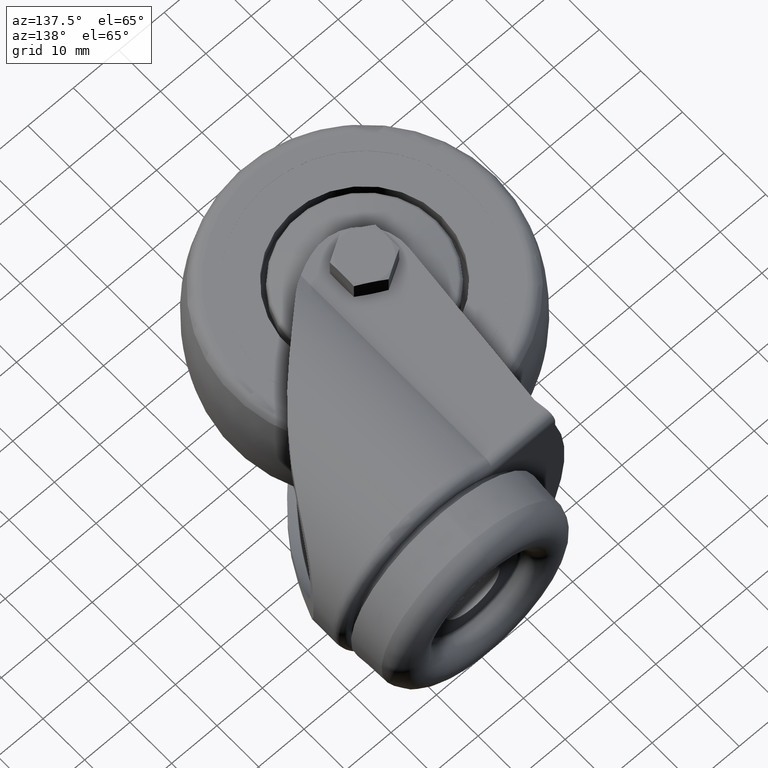
[diagram: clean part render]
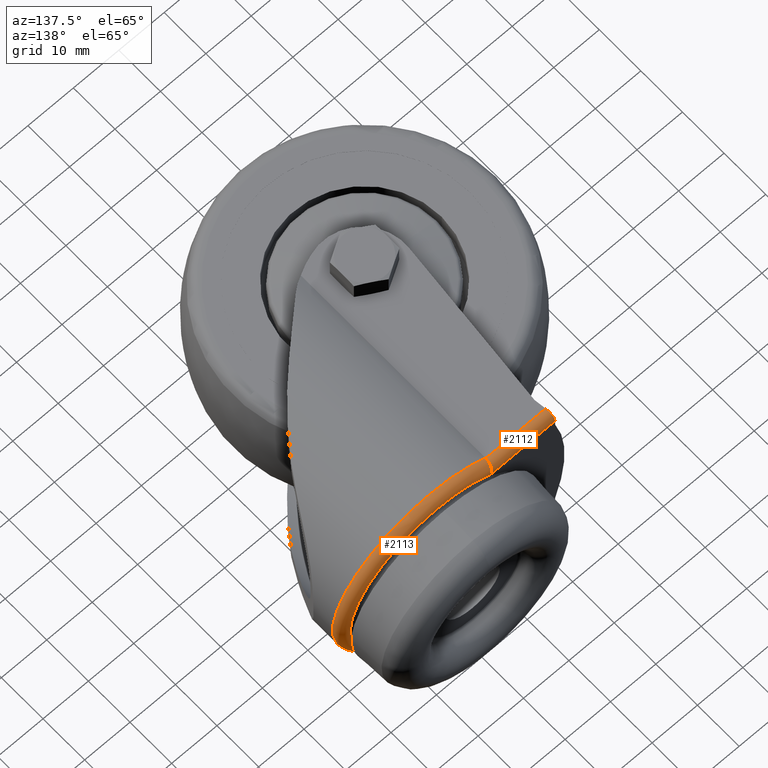
[diagram: same view with one multi-face feature highlighted, each face labeled with its STEP entity id]
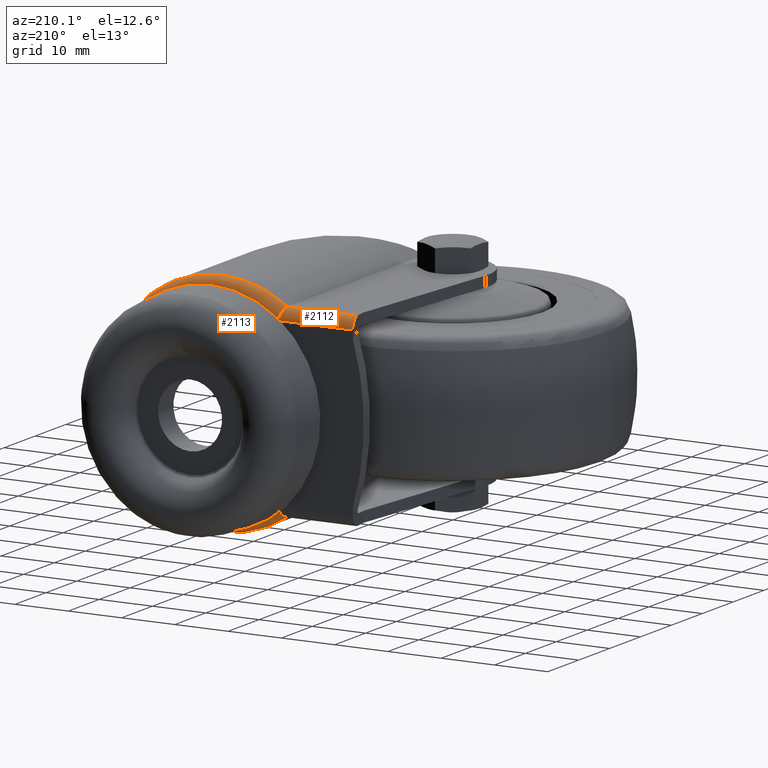
[diagram: same view with one multi-face feature highlighted, each face labeled with its STEP entity id]
A machine part, auxiliary view. The highlighted faces form ONE feature: a constant-radius fillet chain: 2 tangent blend faces with common blend radius 2 mm. The faces share edges in the B-rep.
A second angle (auxiliary view) of the same feature is appended — it is thin or edge-on in the first view.
Their STEP definitions:
[1] entity #2112 (Cylinder):
#103=B_SPLINE_CURVE_WITH_KNOTS('',3,(#3871,#3872,#3873,#3874,#3875,#3876,
#3877,#3878,#3879,#3880,#3881,#3882,#3883,#3884),.UNSPECIFIED.,.F.,.F.,
(4,2,2,2,2,2,4),(0.322816096050483,0.397649244886409,0.474263881122935,
0.554677051712936,0.600033282214207,0.645632192100962,0.646304701485888),
 .UNSPECIFIED.);
#116=ELLIPSE('',#2561,2.01583934746807,2.00000000000001);
#152=CYLINDRICAL_SURFACE('',#2560,2.00000000000001);
#321=FACE_OUTER_BOUND('',#478,.T.);
#478=EDGE_LOOP('',(#1578,#1579,#1580,#1581));
#614=LINE('',#3652,#693);
#618=LINE('',#3664,#697);
#693=VECTOR('',#2943,1000.);
#697=VECTOR('',#2953,1000.);
#945=VERTEX_POINT('',#3643);
#946=VERTEX_POINT('',#3651);
#950=VERTEX_POINT('',#3661);
#951=VERTEX_POINT('',#3663);
#1152=EDGE_CURVE('',#945,#946,#614,.T.);
#1158=EDGE_CURVE('',#951,#950,#618,.T.);
#1204=EDGE_CURVE('',#946,#950,#116,.T.);
#1205=EDGE_CURVE('',#945,#951,#103,.T.);
#1578=ORIENTED_EDGE('',*,*,#1204,.F.);
#1579=ORIENTED_EDGE('',*,*,#1152,.F.);
#1580=ORIENTED_EDGE('',*,*,#1205,.T.);
#1581=ORIENTED_EDGE('',*,*,#1158,.T.);
#2112=ADVANCED_FACE('',(#321),#152,.T.);
#2560=AXIS2_PLACEMENT_3D('',#3869,#3019,#3020);
#2561=AXIS2_PLACEMENT_3D('',#3870,#3021,#3022);
#2943=DIRECTION('',(-1.,0.,0.));
#2953=DIRECTION('',(-1.,0.,0.));
#3019=DIRECTION('center_axis',(1.,0.,0.));
#3020=DIRECTION('ref_axis',(0.,0.,1.));
#3021=DIRECTION('center_axis',(-0.99214255466937,-0.12511255418277,0.));
#3022=DIRECTION('ref_axis',(-0.12511255418277,0.99214255466937,0.));
#3643=CARTESIAN_POINT('',(8.68137469190384,38.6,17.5));
#3651=CARTESIAN_POINT('',(-4.50735182849937,38.6,17.5));
#3652=CARTESIAN_POINT('',(19.,38.6,17.5));
#3661=CARTESIAN_POINT('',(-4.75955863808323,40.6,15.5));
#3663=CARTESIAN_POINT('',(9.33188409935422,40.6,15.5));
#3664=CARTESIAN_POINT('',(19.,40.6,15.5));
#3869=CARTESIAN_POINT('Origin',(19.,38.6,15.5));
#3870=CARTESIAN_POINT('Origin',(-4.50735182849937,38.6,15.5));
#3871=CARTESIAN_POINT('Ctrl Pts',(8.68137469190384,38.6,17.5));
#3872=CARTESIAN_POINT('Ctrl Pts',(8.68137469190384,38.848991949648,17.5));
#3873=CARTESIAN_POINT('Ctrl Pts',(8.69607198060915,39.0949856224179,17.4535109428798));
#3874=CARTESIAN_POINT('Ctrl Pts',(8.75379729465597,39.5616011027358,17.2718601534031));
#3875=CARTESIAN_POINT('Ctrl Pts',(8.79681910122644,39.776068090002,17.1367679858604));
#3876=CARTESIAN_POINT('Ctrl Pts',(8.9082951409065,40.1509394969933,16.7895919344406));
#3877=CARTESIAN_POINT('Ctrl Pts',(8.97677484963717,40.3043531832916,16.5776011628107));
#3878=CARTESIAN_POINT('Ctrl Pts',(9.09573605964698,40.47410460648,16.2132623890098));
#3879=CARTESIAN_POINT('Ctrl Pts',(9.14075527420614,40.520628974106,16.076098570616));
#3880=CARTESIAN_POINT('Ctrl Pts',(9.23375540150812,40.5834852644088,15.7944717052858));
#3881=CARTESIAN_POINT('Ctrl Pts',(9.28156645103604,40.599530105164,15.6505337569408));
#3882=CARTESIAN_POINT('Ctrl Pts',(9.330462603335,40.5999966099959,15.5042520796064));
#3883=CARTESIAN_POINT('Ctrl Pts',(9.33117332201083,40.6,15.502126030401));
#3884=CARTESIAN_POINT('Ctrl Pts',(9.33188409935421,40.6,15.5));
[2] entity #2113 (Torus):
#87=B_SPLINE_CURVE_WITH_KNOTS('',3,(#3644,#3645,#3646,#3647,#3648,#3649,
#3650),.UNSPECIFIED.,.F.,.F.,(4,3,4),(0.0535543288731596,0.0535839052526173,
0.053613481632075),.UNSPECIFIED.);
#103=B_SPLINE_CURVE_WITH_KNOTS('',3,(#3871,#3872,#3873,#3874,#3875,#3876,
#3877,#3878,#3879,#3880,#3881,#3882,#3883,#3884),.UNSPECIFIED.,.F.,.F.,
(4,2,2,2,2,2,4),(0.322816096050483,0.397649244886409,0.474263881122935,
0.554677051712936,0.600033282214207,0.645632192100962,0.646304701485888),
 .UNSPECIFIED.);
#104=B_SPLINE_CURVE_WITH_KNOTS('',3,(#3888,#3889,#3890,#3891,#3892,#3893,
#3894,#3895,#3896,#3897,#3898,#3899,#3900,#3901),.UNSPECIFIED.,.F.,.F.,
(4,2,2,2,2,2,4),(-0.000672509384917449,0.,0.0455989098864941,0.0909551403874547,
0.171368310976907,0.247982947212912,0.322816096048326),.UNSPECIFIED.);
#117=ELLIPSE('',#2563,0.512092469382133,0.227470255085354);
#265=TOROIDAL_SURFACE('',#2562,19.4009002025912,2.);
#322=FACE_OUTER_BOUND('',#479,.T.);
#479=EDGE_LOOP('',(#1582,#1583,#1584,#1585,#1586,#1587));
#803=CIRCLE('',#2534,19.4009002025912);
#812=CIRCLE('',#2558,21.4);
#944=VERTEX_POINT('',#3641);
#945=VERTEX_POINT('',#3643);
#951=VERTEX_POINT('',#3663);
#952=VERTEX_POINT('',#3665);
#979=VERTEX_POINT('',#3792);
#985=VERTEX_POINT('',#3886);
#1151=EDGE_CURVE('',#944,#945,#87,.T.);
#1159=EDGE_CURVE('',#952,#951,#803,.T.);
#1195=EDGE_CURVE('',#979,#944,#812,.T.);
#1205=EDGE_CURVE('',#945,#951,#103,.T.);
#1206=EDGE_CURVE('',#985,#979,#117,.T.);
#1207=EDGE_CURVE('',#952,#985,#104,.T.);
#1582=ORIENTED_EDGE('',*,*,#1206,.F.);
#1583=ORIENTED_EDGE('',*,*,#1207,.F.);
#1584=ORIENTED_EDGE('',*,*,#1159,.T.);
#1585=ORIENTED_EDGE('',*,*,#1205,.F.);
#1586=ORIENTED_EDGE('',*,*,#1151,.F.);
#1587=ORIENTED_EDGE('',*,*,#1195,.F.);
#2113=ADVANCED_FACE('',(#322),#265,.T.);
#2534=AXIS2_PLACEMENT_3D('',#3666,#2954,#2955);
#2558=AXIS2_PLACEMENT_3D('',#3794,#3013,#3014);
#2562=AXIS2_PLACEMENT_3D('',#3885,#3023,#3024);
#2563=AXIS2_PLACEMENT_3D('',#3887,#3025,#3026);
#2954=DIRECTION('center_axis',(0.,-1.,0.));
#2955=DIRECTION('ref_axis',(0.,0.,-1.));
#3013=DIRECTION('center_axis',(0.,-1.,0.));
#3014=DIRECTION('ref_axis',(0.,0.,-1.));
#3023=DIRECTION('center_axis',(0.,-1.,0.));
#3024=DIRECTION('ref_axis',(1.,0.,-6.12323399573676E-17));
#3025=DIRECTION('center_axis',(8.52684693399985E-12,2.59269684531301E-13,
1.));
#3026=DIRECTION('ref_axis',(0.0262418376242717,-0.999655623681526,3.5420265502807E-14));
#3641=CARTESIAN_POINT('',(8.68293866216459,38.5399999999999,17.5));
#3643=CARTESIAN_POINT('',(8.68137469190384,38.6,17.5));
#3644=CARTESIAN_POINT('Ctrl Pts',(8.68293866216458,38.5399999999999,17.5));
#3645=CARTESIAN_POINT('Ctrl Pts',(8.68242059847188,38.5499348133541,17.5));
#3646=CARTESIAN_POINT('Ctrl Pts',(8.68202665818576,38.5599828481802,17.5));
#3647=CARTESIAN_POINT('Ctrl Pts',(8.68176554107677,38.5700024919062,17.5));
#3648=CARTESIAN_POINT('Ctrl Pts',(8.68150442396779,38.5800221356321,17.5));
#3649=CARTESIAN_POINT('Ctrl Pts',(8.68137469190379,38.5900212187712,17.5));
#3650=CARTESIAN_POINT('Ctrl Pts',(8.68137469190379,38.6,17.5));
#3663=CARTESIAN_POINT('',(9.33188409935422,40.6,15.5));
#3665=CARTESIAN_POINT('',(9.33188409935422,40.6,-15.5));
#3666=CARTESIAN_POINT('Origin',(21.,40.6,0.));
#3792=CARTESIAN_POINT('',(8.68293866216459,38.5399999999999,-17.5));
#3794=CARTESIAN_POINT('Origin',(21.,38.5399999999999,0.));
#3871=CARTESIAN_POINT('Ctrl Pts',(8.68137469190384,38.6,17.5));
#3872=CARTESIAN_POINT('Ctrl Pts',(8.68137469190384,38.848991949648,17.5));
#3873=CARTESIAN_POINT('Ctrl Pts',(8.69607198060915,39.0949856224179,17.4535109428798));
#3874=CARTESIAN_POINT('Ctrl Pts',(8.75379729465597,39.5616011027358,17.2718601534031));
#3875=CARTESIAN_POINT('Ctrl Pts',(8.79681910122644,39.776068090002,17.1367679858604));
#3876=CARTESIAN_POINT('Ctrl Pts',(8.9082951409065,40.1509394969933,16.7895919344406));
#3877=CARTESIAN_POINT('Ctrl Pts',(8.97677484963717,40.3043531832916,16.5776011628107));
#3878=CARTESIAN_POINT('Ctrl Pts',(9.09573605964698,40.47410460648,16.2132623890098));
#3879=CARTESIAN_POINT('Ctrl Pts',(9.14075527420614,40.520628974106,16.076098570616));
#3880=CARTESIAN_POINT('Ctrl Pts',(9.23375540150812,40.5834852644088,15.7944717052858));
#3881=CARTESIAN_POINT('Ctrl Pts',(9.28156645103604,40.599530105164,15.6505337569408));
#3882=CARTESIAN_POINT('Ctrl Pts',(9.330462603335,40.5999966099959,15.5042520796064));
#3883=CARTESIAN_POINT('Ctrl Pts',(9.33117332201083,40.6,15.502126030401));
#3884=CARTESIAN_POINT('Ctrl Pts',(9.33188409935421,40.6,15.5));
#3885=CARTESIAN_POINT('Origin',(21.,38.6,0.));
#3886=CARTESIAN_POINT('',(8.68137469190385,38.6,-17.5));
#3887=CARTESIAN_POINT('Origin',(8.90916334749815,38.5757466236135,-17.500000000002));
#3888=CARTESIAN_POINT('Ctrl Pts',(9.33188409935421,40.6,-15.5));
#3889=CARTESIAN_POINT('Ctrl Pts',(9.33117332201084,40.6,-15.502126030401));
#3890=CARTESIAN_POINT('Ctrl Pts',(9.330462603335,40.5999966099959,-15.5042520796064));
#3891=CARTESIAN_POINT('Ctrl Pts',(9.28156645103631,40.599530105164,-15.65053375694));
#3892=CARTESIAN_POINT('Ctrl Pts',(9.23375540150817,40.5834852644089,-15.7944717052856));
#3893=CARTESIAN_POINT('Ctrl Pts',(9.14075527420614,40.520628974106,-16.076098570616));
#3894=CARTESIAN_POINT('Ctrl Pts',(9.09573605964698,40.47410460648,-16.2132623890098));
#3895=CARTESIAN_POINT('Ctrl Pts',(8.97677484963717,40.3043531832916,-16.5776011628107));
#3896=CARTESIAN_POINT('Ctrl Pts',(8.9082951409065,40.1509394969933,-16.7895919344406));
#3897=CARTESIAN_POINT('Ctrl Pts',(8.79681910122643,39.776068090002,-17.1367679858604));
#3898=CARTESIAN_POINT('Ctrl Pts',(8.75379729465597,39.5616011027358,-17.2718601534031));
#3899=CARTESIAN_POINT('Ctrl Pts',(8.69607198060915,39.0949856224179,-17.4535109428798));
#3900=CARTESIAN_POINT('Ctrl Pts',(8.68137469190384,38.848991949648,-17.5));
#3901=CARTESIAN_POINT('Ctrl Pts',(8.68137469190384,38.6,-17.5));